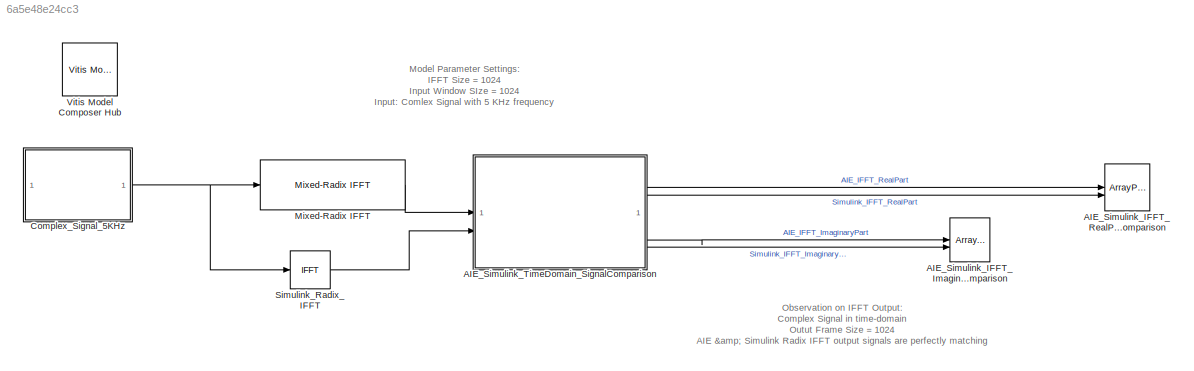
MODEL slx_6a5e48e24cc3
KIND model
CONFIG AbsTol = auto
CONFIG EnableMultiTasking = off
CONFIG FixedStep = auto
CONFIG MaxStep = auto
CONFIG MinStep = auto
CONFIG RelTol = 1e-3
CONFIG SampleTimeConstraint = Unconstrained
CONFIG SolverName = VariableStepAuto
CONFIG StartTime = 0.0
CONFIG StopTime = 1
BLOCK [ArrayPlot] AIE_Simulink_IFFT_ImaginaryPart_Comparison 
  AxesScaling = Manual
  GraphicalSettings = {"Style":{"BackgroundColor":[0.15686274509803921,0.15686274509803921,0.15686274509803921],"AxesColor":[0,0,0],"LabelsColor":[0.68627450980392157,0.68627450980392157,0.68627450980392157],"LineStyle":["-","-"],"LineColor":[[1,1,0.066666666666666666],[0.074509803921568626,0.62352941176470589,1]],"LineWidth":[1.5,1.5],"Marker":["none","none"],"FontSize":"small"},"Cursors":{"Enabled":false,"XLocation":...<+392ch>
  NumInputPorts = 2
  PlotType = Line
  ShowLegend = on
  WasSavedAsWebScope = on
  WindowPosition = [134.000000,82.000000,1061.000000,557.000000,]
  YLimits = [-1000,1000]
BLOCK [ArrayPlot] AIE_Simulink_IFFT_RealPart_Comparison
  GraphicalSettings = {"Style":{"BackgroundColor":[0.15686274509803921,0.15686274509803921,0.15686274509803921],"AxesColor":[0,0,0],"LabelsColor":[0.68627450980392157,0.68627450980392157,0.68627450980392157],"LineStyle":["-","-"],"LineColor":[[1,1,0.066666666666666666],[0.074509803921568626,0.62352941176470589,1]],"LineWidth":[1.5,1.5],"Marker":["none","none"],"FontSize":"small"},"Cursors":{"Enabled":false,"XLocation":...<+392ch>
  NumInputPorts = 2
  PlotType = Line
  ShowLegend = on
  WasSavedAsWebScope = on
  WindowPosition = [1.000000,37.000000,1280.000000,655.000000,]
  YLimits = [-1280,1280]
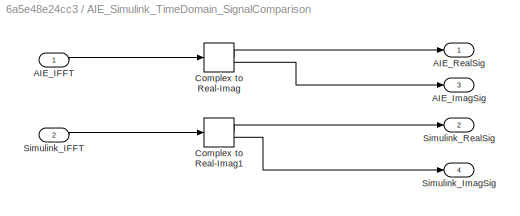
BLOCK [SubSystem] AIE_Simulink_TimeDomain_SignalComparison
BLOCK [Inport] AIE_Simulink_TimeDomain_SignalComparison/AIE_IFFT
BLOCK [Outport] AIE_Simulink_TimeDomain_SignalComparison/AIE_ImagSig
  Port = 3
BLOCK [Outport] AIE_Simulink_TimeDomain_SignalComparison/AIE_RealSig
BLOCK [ComplexToRealImag] AIE_Simulink_TimeDomain_SignalComparison/Complex to Real-Imag
BLOCK [ComplexToRealImag] AIE_Simulink_TimeDomain_SignalComparison/Complex to Real-Imag1
BLOCK [Inport] AIE_Simulink_TimeDomain_SignalComparison/Simulink_IFFT
  Port = 2
BLOCK [Outport] AIE_Simulink_TimeDomain_SignalComparison/Simulink_ImagSig
  Port = 4
BLOCK [Outport] AIE_Simulink_TimeDomain_SignalComparison/Simulink_RealSig
  Port = 2
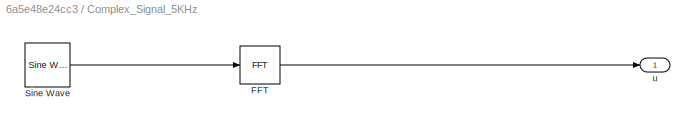
BLOCK [SubSystem] Complex_Signal_5KHz
BLOCK [Reference] Complex_Signal_5KHz/FFT  REF=dspxfrm3/FFT
  SourceBlock = dspxfrm3/FFT
  SourceType = FFT
BLOCK [Reference] Complex_Signal_5KHz/Sine Wave  REF=dspsrcs4/Sine Wave
  SourceBlock = dspsrcs4/Sine Wave
  SourceType = Sine Wave
BLOCK [Outport] Complex_Signal_5KHz/u
BLOCK [Reference] Mixed-Radix IFFT  REF=aieDSP/Mixed-Radix IFFT
  SourceBlock = aieDSP/Mixed-Radix IFFT
  SourceType = Mixed-Radix IFFT
BLOCK [Reference] Simulink_Radix_IFFT  REF=dspxfrm3/IFFT
  SourceBlock = dspxfrm3/IFFT
  SourceType = IFFT
BLOCK [Reference] Vitis Model Composer Hub  REF=vmcUtilities/Vitis Model Composer Hub
  SourceBlock = vmcUtilities/Vitis Model Composer Hub
  SourceType = VMC Hub
  Tag = genX
  UserDataPersistent = on
ANNOTATION (root): Model Parameter Settings: IFFT Size = 1024 Input Window SIze = 1024 Input: Comlex Signal with 5 KHz frequency
ANNOTATION (root): Observation on IFFT Output: Complex Signal in time-domain Outut Frame Size = 1024 AIE & Simulink Radix IFFT output signals are perfectly matching
LINE AIE_Simulink_TimeDomain_SignalComparison/AIE_IFFT:1 -> AIE_Simulink_TimeDomain_SignalComparison/Complex to Real-Imag:1
LINE AIE_Simulink_TimeDomain_SignalComparison/Complex to Real-Imag1:1 -> AIE_Simulink_TimeDomain_SignalComparison/Simulink_RealSig:1
LINE AIE_Simulink_TimeDomain_SignalComparison/Complex to Real-Imag1:2 -> AIE_Simulink_TimeDomain_SignalComparison/Simulink_ImagSig:1
LINE AIE_Simulink_TimeDomain_SignalComparison/Complex to Real-Imag:1 -> AIE_Simulink_TimeDomain_SignalComparison/AIE_RealSig:1
LINE AIE_Simulink_TimeDomain_SignalComparison/Complex to Real-Imag:2 -> AIE_Simulink_TimeDomain_SignalComparison/AIE_ImagSig:1
LINE AIE_Simulink_TimeDomain_SignalComparison/Simulink_IFFT:1 -> AIE_Simulink_TimeDomain_SignalComparison/Complex to Real-Imag1:1
LINE AIE_Simulink_TimeDomain_SignalComparison:1 -> AIE_Simulink_IFFT_RealPart_Comparison:1
LINE AIE_Simulink_TimeDomain_SignalComparison:2 -> AIE_Simulink_IFFT_RealPart_Comparison:2
LINE AIE_Simulink_TimeDomain_SignalComparison:3 -> AIE_Simulink_IFFT_ImaginaryPart_Comparison :1
LINE AIE_Simulink_TimeDomain_SignalComparison:4 -> AIE_Simulink_IFFT_ImaginaryPart_Comparison :2
LINE Complex_Signal_5KHz/FFT:1 -> Complex_Signal_5KHz/u:1
LINE Complex_Signal_5KHz/Sine Wave:1 -> Complex_Signal_5KHz/FFT:1
NET Complex_Signal_5KHz:1 -> Mixed-Radix IFFT:1, Simulink_Radix_IFFT:1
LINE Mixed-Radix IFFT:1 -> AIE_Simulink_TimeDomain_SignalComparison:1
LINE Simulink_Radix_IFFT:1 -> AIE_Simulink_TimeDomain_SignalComparison:2
note: NET lines group one-source signal fan-out (src -> all destinations, sorted); 1:1 wires keep LINE
